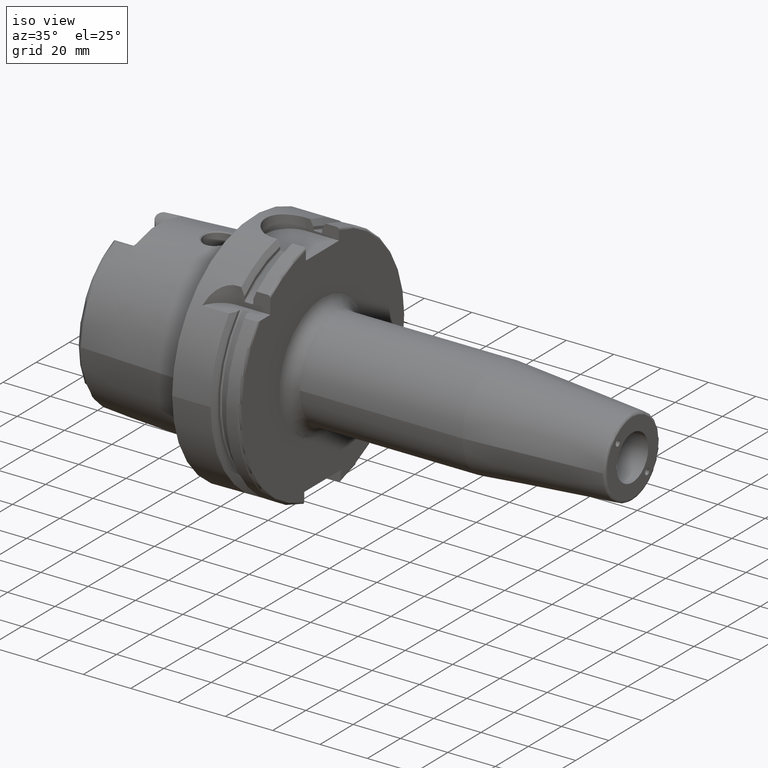
[diagram: clean part render]
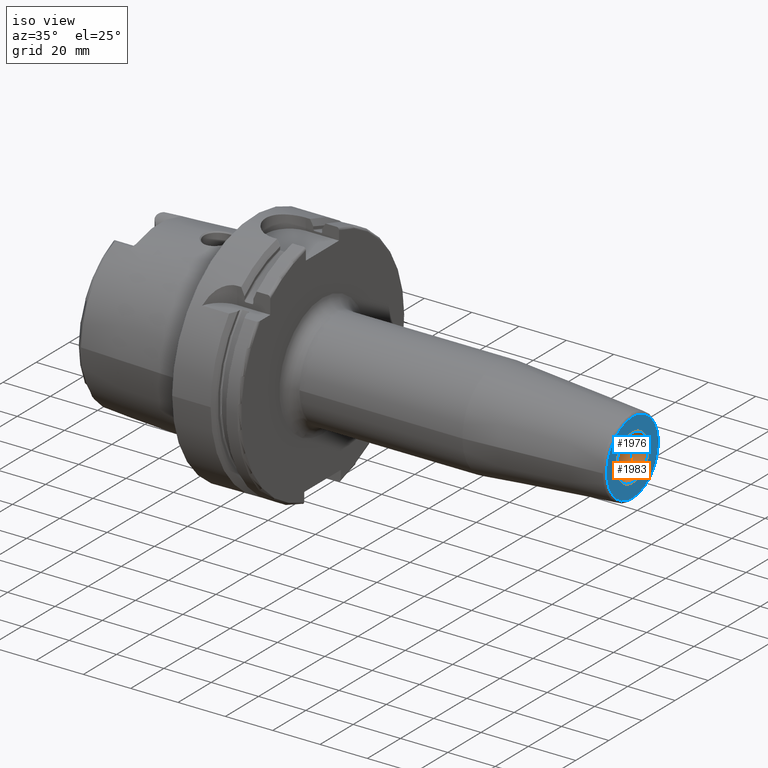
[diagram: same view with the hole feature highlighted: cylindrical wall and planar end face, labeled with their STEP entity ids]
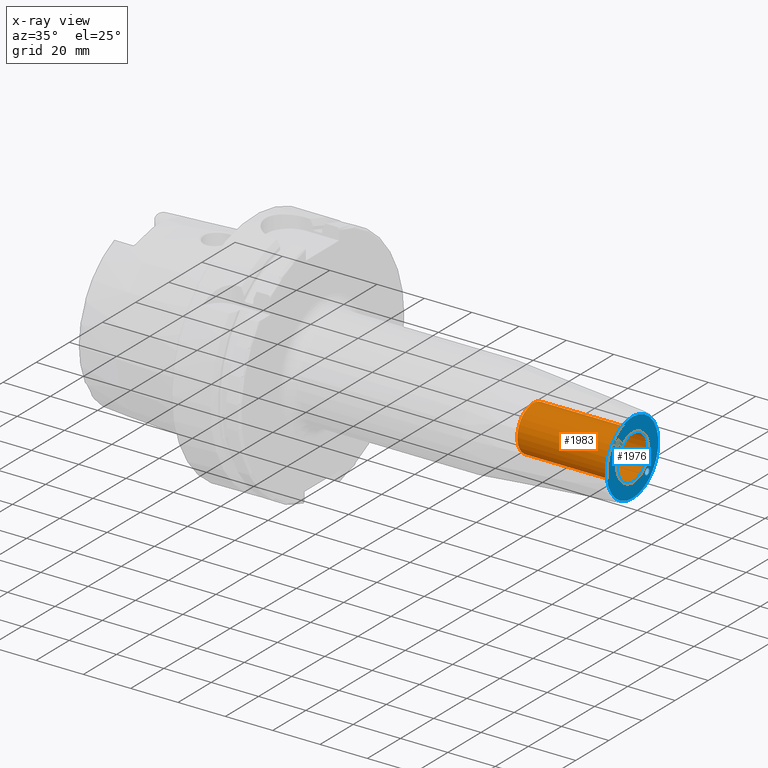
[diagram: x-ray of the same camera — body ghosted, the hole faces saturated]
A machine part, iso view. The highlighted faces form one hole feature of diameter 19.05 mm: the cylindrical wall (entity #1983, orange) and its adjacent planar end face (entity #1976, blue) — they share a circular edge in the B-rep.
The next image is the same camera in x-ray (body ghosted, the hole faces saturated) — the bore reads through the body.
Wall:
#176=CYLINDRICAL_SURFACE('',#2147,9.52500000000001);
#221=FACE_OUTER_BOUND('',#344,.T.);
#344=EDGE_LOOP('',(#1387,#1388,#1389,#1390));
#476=LINE('',#3077,#583);
#583=VECTOR('',#2460,9.52500000000001);
#680=CIRCLE('',#2128,9.52500000000001);
#693=CIRCLE('',#2148,9.52500000000001);
#813=VERTEX_POINT('',#3024);
#833=VERTEX_POINT('',#3076);
#1022=EDGE_CURVE('',#813,#813,#680,.T.);
#1047=EDGE_CURVE('',#813,#833,#476,.T.);
#1048=EDGE_CURVE('',#833,#833,#693,.T.);
#1387=ORIENTED_EDGE('',*,*,#1022,.T.);
#1388=ORIENTED_EDGE('',*,*,#1047,.T.);
#1389=ORIENTED_EDGE('',*,*,#1048,.F.);
#1390=ORIENTED_EDGE('',*,*,#1047,.F.);
#1983=ADVANCED_FACE('',(#221),#176,.F.);
#2128=AXIS2_PLACEMENT_3D('',#3025,#2408,#2409);
#2147=AXIS2_PLACEMENT_3D('',#3075,#2458,#2459);
#2148=AXIS2_PLACEMENT_3D('',#3078,#2461,#2462);
#2408=DIRECTION('center_axis',(1.,0.,0.));
#2409=DIRECTION('ref_axis',(0.,0.,-1.));
#2458=DIRECTION('center_axis',(1.,0.,0.));
#2459=DIRECTION('ref_axis',(0.,1.,0.));
#2460=DIRECTION('',(-1.,0.,0.));
#2461=DIRECTION('center_axis',(1.,0.,0.));
#2462=DIRECTION('ref_axis',(0.,0.,-1.));
#3024=CARTESIAN_POINT('',(160.,-9.52500000000001,-1.16647607618785E-15));
#3025=CARTESIAN_POINT('Origin',(160.,0.,0.));
#3075=CARTESIAN_POINT('Origin',(139.,0.,0.));
#3076=CARTESIAN_POINT('',(118.,-9.52500000000001,-1.16647607618785E-15));
#3077=CARTESIAN_POINT('',(139.,-9.52500000000001,-1.16647607618785E-15));
#3078=CARTESIAN_POINT('Origin',(118.,0.,0.));
End face:
#85=FACE_BOUND('',#334,.T.);
#86=FACE_BOUND('',#335,.T.);
#87=FACE_BOUND('',#336,.T.);
#98=PLANE('',#2127);
#161=ELLIPSE('',#2115,1.25076193037353,1.25);
#162=ELLIPSE('',#2119,1.25076193037353,1.25);
#214=FACE_OUTER_BOUND('',#333,.T.);
#333=EDGE_LOOP('',(#1347));
#334=EDGE_LOOP('',(#1348));
#335=EDGE_LOOP('',(#1349));
#336=EDGE_LOOP('',(#1350));
#675=CIRCLE('',#2121,15.5756095083418);
#680=CIRCLE('',#2128,9.52500000000001);
#805=VERTEX_POINT('',#2999);
#808=VERTEX_POINT('',#3008);
#809=VERTEX_POINT('',#3012);
#813=VERTEX_POINT('',#3024);
#1010=EDGE_CURVE('',#805,#805,#161,.T.);
#1014=EDGE_CURVE('',#808,#808,#162,.T.);
#1016=EDGE_CURVE('',#809,#809,#675,.T.);
#1022=EDGE_CURVE('',#813,#813,#680,.T.);
#1347=ORIENTED_EDGE('',*,*,#1016,.F.);
#1348=ORIENTED_EDGE('',*,*,#1010,.T.);
#1349=ORIENTED_EDGE('',*,*,#1014,.T.);
#1350=ORIENTED_EDGE('',*,*,#1022,.F.);
#1976=ADVANCED_FACE('',(#214,#85,#86,#87),#98,.T.);
#2115=AXIS2_PLACEMENT_3D('',#3000,#2378,#2379);
#2119=AXIS2_PLACEMENT_3D('',#3009,#2388,#2389);
#2121=AXIS2_PLACEMENT_3D('',#3013,#2393,#2394);
#2127=AXIS2_PLACEMENT_3D('',#3023,#2406,#2407);
#2128=AXIS2_PLACEMENT_3D('',#3025,#2408,#2409);
#2378=DIRECTION('center_axis',(-1.,0.,0.));
#2379=DIRECTION('ref_axis',(0.,-0.707106781186413,0.707106781186682));
#2388=DIRECTION('center_axis',(-1.,0.,0.));
#2389=DIRECTION('ref_axis',(0.,0.707106781186413,-0.707106781186682));
#2393=DIRECTION('center_axis',(-1.,0.,0.));
#2394=DIRECTION('ref_axis',(0.,-1.,1.83697019872103E-16));
#2406=DIRECTION('center_axis',(1.,0.,0.));
#2407=DIRECTION('ref_axis',(0.,0.,-1.));
#2408=DIRECTION('center_axis',(1.,0.,0.));
#2409=DIRECTION('ref_axis',(0.,0.,-1.));
#2999=CARTESIAN_POINT('',(160.,-7.58845374160898,8.83807283449368));
#3000=CARTESIAN_POINT('Origin',(160.,-8.83883476483184,8.83883476483184));
#3008=CARTESIAN_POINT('',(160.,7.58845374160898,-8.83807283449368));
#3009=CARTESIAN_POINT('Origin',(160.,8.83883476483184,-8.83883476483184));
#3012=CARTESIAN_POINT('',(160.,-1.90746203291599E-15,15.5756095083418));
#3013=CARTESIAN_POINT('Origin',(160.,0.,0.));
#3023=CARTESIAN_POINT('Origin',(160.,9.52500000000001,0.));
#3024=CARTESIAN_POINT('',(160.,-9.52500000000001,-1.16647607618785E-15));
#3025=CARTESIAN_POINT('Origin',(160.,0.,0.));